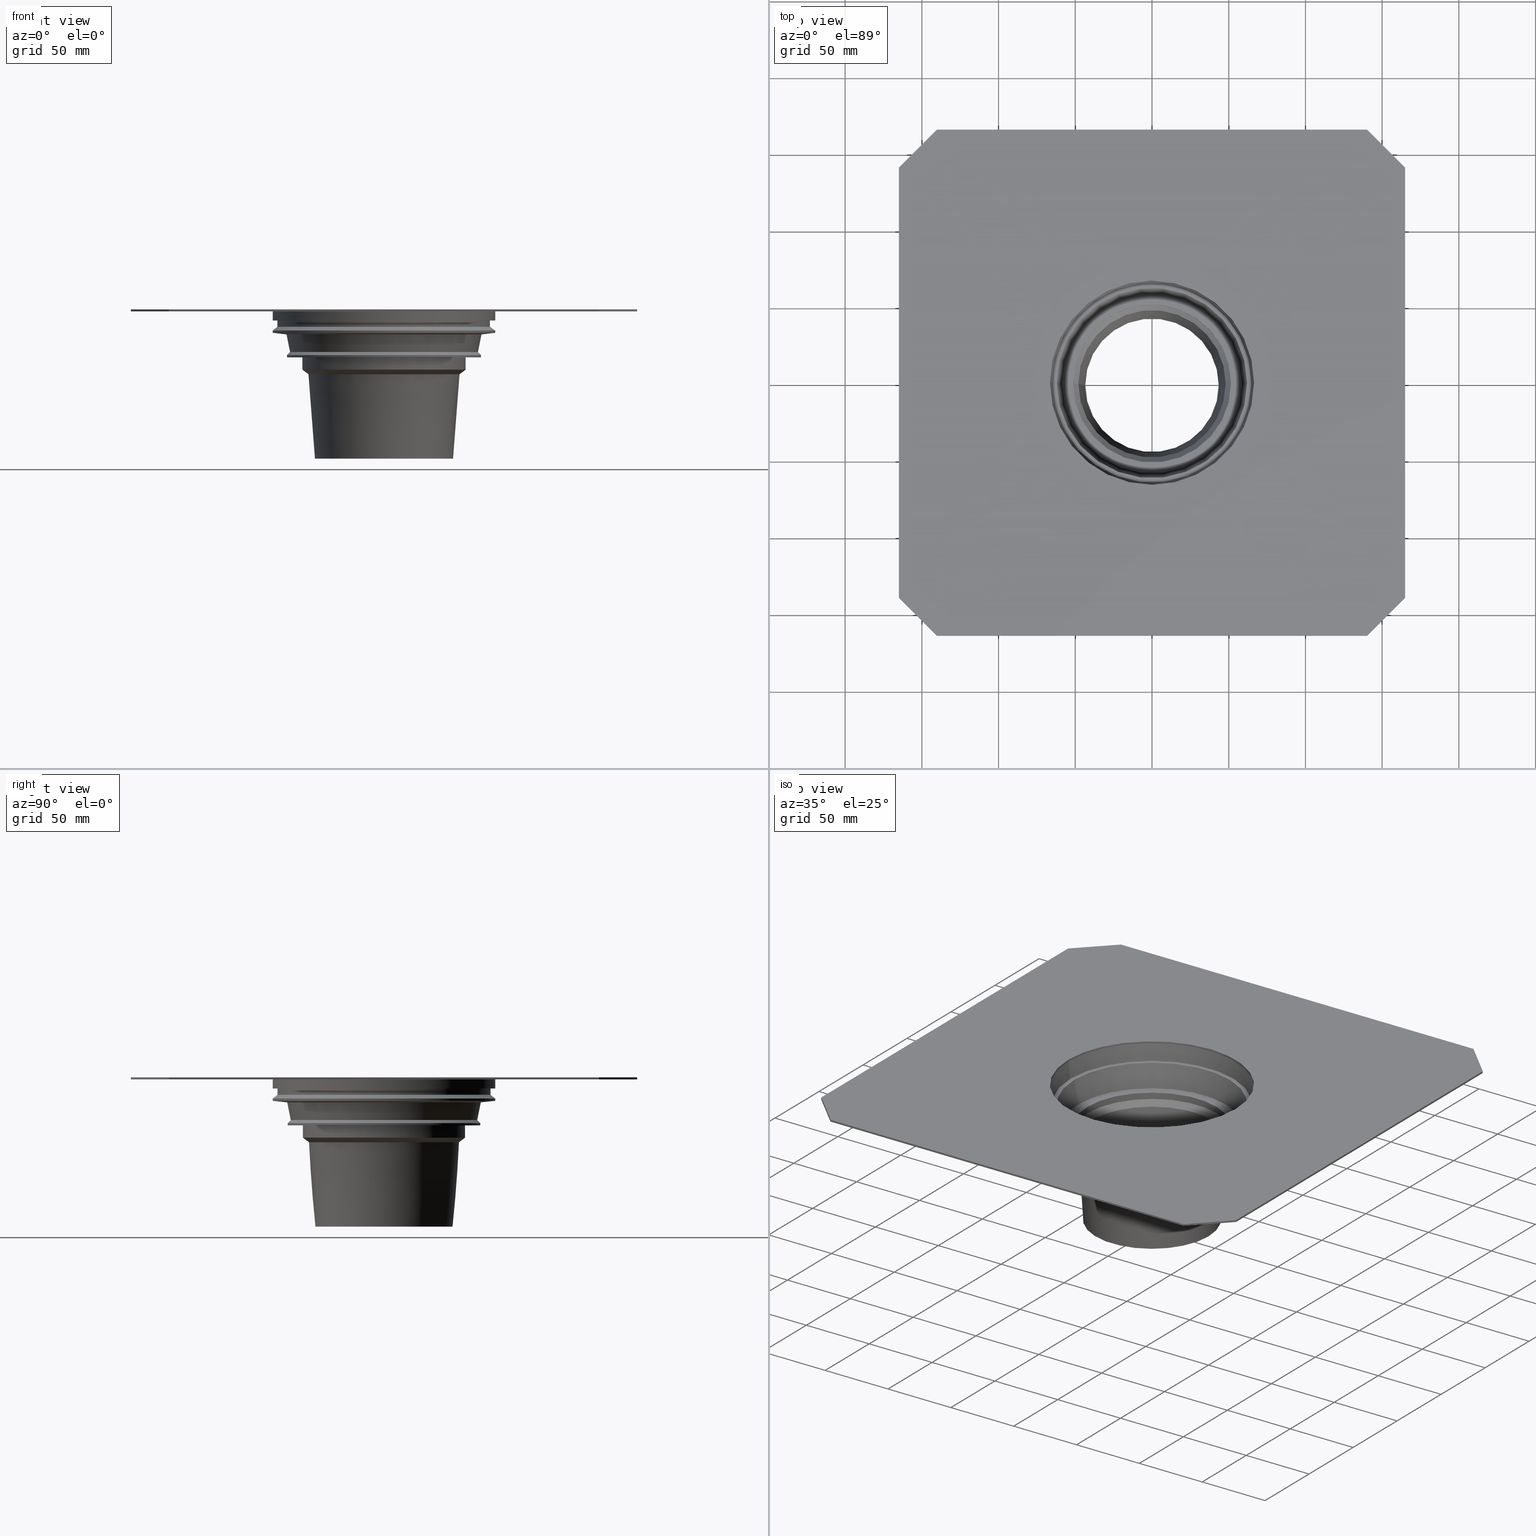
[diagram: canonical four-view strip — front | top / right | iso, engineering-drawing reading convention]
A machine part, canonical four-view strip (front | top / right | iso — engineering-drawing reading convention). The complete STEP part file that produces these views, byte-faithful:
ISO-10303-21;
HEADER;
/* Generated by software containing ST-Developer
 * from STEP Tools, Inc. (www.steptools.com) 
 */
/* OPTION: using custom renumber hook */

FILE_DESCRIPTION(
/* description */ ('STEP AP214'),
/* implementation_level */ '2;1');

FILE_NAME(
/* name */ '482017001(1)',
/* time_stamp */ '2022-12-23T08:21:32+01:00',
/* author */ ('License CC BY-ND 4.0'),
/* organization */ ('CADENAS'),
/* preprocessor_version */ 'ST-DEVELOPER v18.102',
/* originating_system */ 'PARTsolutions',
/* authorisation */ '  ');

FILE_SCHEMA (('AUTOMOTIVE_DESIGN {1 0 10303 214 3 1 1}'));
ENDSEC;

DATA;
#10=PROPERTY_DEFINITION_REPRESENTATION(#14,#12);
#11=PROPERTY_DEFINITION_REPRESENTATION(#15,#13);
#12=REPRESENTATION('',(#16),#771);
#13=REPRESENTATION('',(#17),#771);
#14=PROPERTY_DEFINITION('pmi validation property','',#776);
#15=PROPERTY_DEFINITION('pmi validation property','',#776);
#16=VALUE_REPRESENTATION_ITEM('number of annotations',COUNT_MEASURE(0.));
#17=VALUE_REPRESENTATION_ITEM('number of views',COUNT_MEASURE(0.));
#18=SHAPE_REPRESENTATION_RELATIONSHIP('','',#458,#19);
#19=ADVANCED_BREP_SHAPE_REPRESENTATION('',(#456),#771);
#20=CONICAL_SURFACE('',#471,63.556,1.45945195543957);
#21=CONICAL_SURFACE('',#476,72.5,0.876058050598193);
#22=CONICAL_SURFACE('',#484,66.5,0.132797157435015);
#23=CONICAL_SURFACE('',#488,61.897,0.201179487707473);
#24=CONICAL_SURFACE('',#494,51.5,0.718829999621625);
#25=CONICAL_SURFACE('',#496,48.,0.0766302366143812);
#26=CONICAL_SURFACE('',#500,45.,0.0766314619462777);
#27=CONICAL_SURFACE('',#502,49.223,0.92729521800161);
#28=CONICAL_SURFACE('',#510,63.223,0.788389181397253);
#29=CONICAL_SURFACE('',#512,61.211,0.201155254725828);
#30=CIRCLE('',#468,66.5);
#31=CIRCLE('',#469,66.5);
#32=CIRCLE('',#472,72.5);
#33=CIRCLE('',#473,63.556);
#34=CIRCLE('',#475,72.5);
#35=CIRCLE('',#477,69.5);
#36=CIRCLE('',#479,69.5);
#37=CIRCLE('',#481,72.5);
#38=CIRCLE('',#483,72.5);
#39=CIRCLE('',#485,64.897);
#40=CIRCLE('',#487,61.897);
#41=CIRCLE('',#489,58.5);
#42=CIRCLE('',#491,51.5);
#43=CIRCLE('',#493,51.5);
#44=CIRCLE('',#495,48.);
#45=CIRCLE('',#497,43.482);
#46=CIRCLE('',#499,45.);
#47=CIRCLE('',#501,49.223);
#48=CIRCLE('',#503,53.223);
#49=CIRCLE('',#505,53.223);
#50=CIRCLE('',#507,63.223);
#51=CIRCLE('',#509,63.223);
#52=CIRCLE('',#511,61.211);
#53=CYLINDRICAL_SURFACE('',#467,66.5);
#54=CYLINDRICAL_SURFACE('',#474,72.5);
#55=CYLINDRICAL_SURFACE('',#478,69.5);
#56=CYLINDRICAL_SURFACE('',#482,72.5);
#57=CYLINDRICAL_SURFACE('',#492,51.5);
#58=CYLINDRICAL_SURFACE('',#504,53.223);
#59=CYLINDRICAL_SURFACE('',#508,63.223);
#60=ORIENTED_EDGE('',*,*,#154,.F.);
#61=ORIENTED_EDGE('',*,*,#155,.T.);
#62=ORIENTED_EDGE('',*,*,#156,.T.);
#63=ORIENTED_EDGE('',*,*,#157,.F.);
#64=ORIENTED_EDGE('',*,*,#158,.F.);
#65=ORIENTED_EDGE('',*,*,#157,.T.);
#66=ORIENTED_EDGE('',*,*,#159,.T.);
#67=ORIENTED_EDGE('',*,*,#160,.F.);
#68=ORIENTED_EDGE('',*,*,#161,.F.);
#69=ORIENTED_EDGE('',*,*,#160,.T.);
#70=ORIENTED_EDGE('',*,*,#162,.T.);
#71=ORIENTED_EDGE('',*,*,#163,.F.);
#72=ORIENTED_EDGE('',*,*,#164,.F.);
#73=ORIENTED_EDGE('',*,*,#163,.T.);
#74=ORIENTED_EDGE('',*,*,#165,.T.);
#75=ORIENTED_EDGE('',*,*,#166,.F.);
#76=ORIENTED_EDGE('',*,*,#167,.F.);
#77=ORIENTED_EDGE('',*,*,#166,.T.);
#78=ORIENTED_EDGE('',*,*,#168,.T.);
#79=ORIENTED_EDGE('',*,*,#169,.F.);
#80=ORIENTED_EDGE('',*,*,#170,.F.);
#81=ORIENTED_EDGE('',*,*,#169,.T.);
#82=ORIENTED_EDGE('',*,*,#171,.T.);
#83=ORIENTED_EDGE('',*,*,#172,.F.);
#84=ORIENTED_EDGE('',*,*,#173,.F.);
#85=ORIENTED_EDGE('',*,*,#172,.T.);
#86=ORIENTED_EDGE('',*,*,#174,.T.);
#87=ORIENTED_EDGE('',*,*,#175,.F.);
#88=ORIENTED_EDGE('',*,*,#176,.T.);
#89=ORIENTED_EDGE('',*,*,#177,.T.);
#90=ORIENTED_EDGE('',*,*,#178,.F.);
#91=ORIENTED_EDGE('',*,*,#175,.T.);
#92=ORIENTED_EDGE('',*,*,#179,.T.);
#93=ORIENTED_EDGE('',*,*,#155,.F.);
#94=ORIENTED_EDGE('',*,*,#180,.T.);
#95=ORIENTED_EDGE('',*,*,#181,.F.);
#96=ORIENTED_EDGE('',*,*,#182,.T.);
#97=ORIENTED_EDGE('',*,*,#180,.F.);
#98=ORIENTED_EDGE('',*,*,#183,.T.);
#99=ORIENTED_EDGE('',*,*,#182,.F.);
#100=ORIENTED_EDGE('',*,*,#184,.T.);
#101=ORIENTED_EDGE('',*,*,#183,.F.);
#102=ORIENTED_EDGE('',*,*,#185,.T.);
#103=ORIENTED_EDGE('',*,*,#184,.F.);
#104=ORIENTED_EDGE('',*,*,#186,.T.);
#105=ORIENTED_EDGE('',*,*,#185,.F.);
#106=ORIENTED_EDGE('',*,*,#187,.T.);
#107=ORIENTED_EDGE('',*,*,#176,.F.);
#108=ORIENTED_EDGE('',*,*,#188,.T.);
#109=ORIENTED_EDGE('',*,*,#187,.F.);
#110=ORIENTED_EDGE('',*,*,#189,.T.);
#111=ORIENTED_EDGE('',*,*,#188,.F.);
#112=ORIENTED_EDGE('',*,*,#190,.T.);
#113=ORIENTED_EDGE('',*,*,#189,.F.);
#114=ORIENTED_EDGE('',*,*,#191,.T.);
#115=ORIENTED_EDGE('',*,*,#190,.F.);
#116=ORIENTED_EDGE('',*,*,#192,.T.);
#117=ORIENTED_EDGE('',*,*,#191,.F.);
#118=ORIENTED_EDGE('',*,*,#193,.T.);
#119=ORIENTED_EDGE('',*,*,#192,.F.);
#120=ORIENTED_EDGE('',*,*,#194,.T.);
#121=ORIENTED_EDGE('',*,*,#193,.F.);
#122=ORIENTED_EDGE('',*,*,#195,.T.);
#123=ORIENTED_EDGE('',*,*,#194,.F.);
#124=ORIENTED_EDGE('',*,*,#196,.T.);
#125=ORIENTED_EDGE('',*,*,#195,.F.);
#126=ORIENTED_EDGE('',*,*,#197,.T.);
#127=ORIENTED_EDGE('',*,*,#196,.F.);
#128=ORIENTED_EDGE('',*,*,#198,.T.);
#129=ORIENTED_EDGE('',*,*,#197,.F.);
#130=ORIENTED_EDGE('',*,*,#199,.T.);
#131=ORIENTED_EDGE('',*,*,#198,.F.);
#132=ORIENTED_EDGE('',*,*,#200,.T.);
#133=ORIENTED_EDGE('',*,*,#199,.F.);
#134=ORIENTED_EDGE('',*,*,#181,.T.);
#135=ORIENTED_EDGE('',*,*,#200,.F.);
#136=ORIENTED_EDGE('',*,*,#186,.F.);
#137=ORIENTED_EDGE('',*,*,#156,.F.);
#138=ORIENTED_EDGE('',*,*,#179,.F.);
#139=ORIENTED_EDGE('',*,*,#174,.F.);
#140=ORIENTED_EDGE('',*,*,#171,.F.);
#141=ORIENTED_EDGE('',*,*,#168,.F.);
#142=ORIENTED_EDGE('',*,*,#165,.F.);
#143=ORIENTED_EDGE('',*,*,#162,.F.);
#144=ORIENTED_EDGE('',*,*,#159,.F.);
#145=ORIENTED_EDGE('',*,*,#177,.F.);
#146=ORIENTED_EDGE('',*,*,#154,.T.);
#147=ORIENTED_EDGE('',*,*,#158,.T.);
#148=ORIENTED_EDGE('',*,*,#161,.T.);
#149=ORIENTED_EDGE('',*,*,#164,.T.);
#150=ORIENTED_EDGE('',*,*,#167,.T.);
#151=ORIENTED_EDGE('',*,*,#170,.T.);
#152=ORIENTED_EDGE('',*,*,#173,.T.);
#153=ORIENTED_EDGE('',*,*,#178,.T.);
#154=EDGE_CURVE('',#201,#202,#240,.T.);
#155=EDGE_CURVE('',#201,#203,#241,.T.);
#156=EDGE_CURVE('',#203,#204,#242,.T.);
#157=EDGE_CURVE('',#202,#204,#243,.T.);
#158=EDGE_CURVE('',#202,#205,#244,.T.);
#159=EDGE_CURVE('',#204,#206,#245,.T.);
#160=EDGE_CURVE('',#205,#206,#246,.T.);
#161=EDGE_CURVE('',#205,#207,#247,.T.);
#162=EDGE_CURVE('',#206,#208,#248,.T.);
#163=EDGE_CURVE('',#207,#208,#249,.T.);
#164=EDGE_CURVE('',#207,#209,#250,.T.);
#165=EDGE_CURVE('',#208,#210,#251,.T.);
#166=EDGE_CURVE('',#209,#210,#252,.T.);
#167=EDGE_CURVE('',#209,#211,#253,.T.);
#168=EDGE_CURVE('',#210,#212,#254,.T.);
#169=EDGE_CURVE('',#211,#212,#255,.T.);
#170=EDGE_CURVE('',#211,#213,#256,.T.);
#171=EDGE_CURVE('',#212,#214,#257,.T.);
#172=EDGE_CURVE('',#213,#214,#258,.T.);
#173=EDGE_CURVE('',#213,#215,#259,.T.);
#174=EDGE_CURVE('',#214,#216,#260,.T.);
#175=EDGE_CURVE('',#215,#216,#261,.T.);
#176=EDGE_CURVE('',#217,#217,#30,.T.);
#177=EDGE_CURVE('',#218,#218,#31,.T.);
#178=EDGE_CURVE('',#215,#201,#262,.T.);
#179=EDGE_CURVE('',#216,#203,#263,.T.);
#180=EDGE_CURVE('',#219,#219,#32,.T.);
#181=EDGE_CURVE('',#220,#220,#33,.T.);
#182=EDGE_CURVE('',#221,#221,#34,.T.);
#183=EDGE_CURVE('',#222,#222,#35,.T.);
#184=EDGE_CURVE('',#223,#223,#36,.T.);
#185=EDGE_CURVE('',#224,#224,#37,.T.);
#186=EDGE_CURVE('',#225,#225,#38,.F.);
#187=EDGE_CURVE('',#226,#226,#39,.T.);
#188=EDGE_CURVE('',#227,#227,#40,.T.);
#189=EDGE_CURVE('',#228,#228,#41,.T.);
#190=EDGE_CURVE('',#229,#229,#42,.T.);
#191=EDGE_CURVE('',#230,#230,#43,.T.);
#192=EDGE_CURVE('',#231,#231,#44,.T.);
#193=EDGE_CURVE('',#232,#232,#45,.T.);
#194=EDGE_CURVE('',#233,#233,#46,.T.);
#195=EDGE_CURVE('',#234,#234,#47,.T.);
#196=EDGE_CURVE('',#235,#235,#48,.T.);
#197=EDGE_CURVE('',#236,#236,#49,.T.);
#198=EDGE_CURVE('',#237,#237,#50,.T.);
#199=EDGE_CURVE('',#238,#238,#51,.T.);
#200=EDGE_CURVE('',#239,#239,#52,.T.);
#201=VERTEX_POINT('',#654);
#202=VERTEX_POINT('',#655);
#203=VERTEX_POINT('',#657);
#204=VERTEX_POINT('',#659);
#205=VERTEX_POINT('',#663);
#206=VERTEX_POINT('',#665);
#207=VERTEX_POINT('',#669);
#208=VERTEX_POINT('',#671);
#209=VERTEX_POINT('',#675);
#210=VERTEX_POINT('',#677);
#211=VERTEX_POINT('',#681);
#212=VERTEX_POINT('',#683);
#213=VERTEX_POINT('',#687);
#214=VERTEX_POINT('',#689);
#215=VERTEX_POINT('',#693);
#216=VERTEX_POINT('',#695);
#217=VERTEX_POINT('',#699);
#218=VERTEX_POINT('',#701);
#219=VERTEX_POINT('',#707);
#220=VERTEX_POINT('',#709);
#221=VERTEX_POINT('',#712);
#222=VERTEX_POINT('',#715);
#223=VERTEX_POINT('',#718);
#224=VERTEX_POINT('',#721);
#225=VERTEX_POINT('',#724);
#226=VERTEX_POINT('',#727);
#227=VERTEX_POINT('',#730);
#228=VERTEX_POINT('',#733);
#229=VERTEX_POINT('',#736);
#230=VERTEX_POINT('',#739);
#231=VERTEX_POINT('',#742);
#232=VERTEX_POINT('',#745);
#233=VERTEX_POINT('',#748);
#234=VERTEX_POINT('',#751);
#235=VERTEX_POINT('',#754);
#236=VERTEX_POINT('',#757);
#237=VERTEX_POINT('',#760);
#238=VERTEX_POINT('',#763);
#239=VERTEX_POINT('',#766);
#240=LINE('',#653,#264);
#241=LINE('',#656,#265);
#242=LINE('',#658,#266);
#243=LINE('',#660,#267);
#244=LINE('',#662,#268);
#245=LINE('',#664,#269);
#246=LINE('',#666,#270);
#247=LINE('',#668,#271);
#248=LINE('',#670,#272);
#249=LINE('',#672,#273);
#250=LINE('',#674,#274);
#251=LINE('',#676,#275);
#252=LINE('',#678,#276);
#253=LINE('',#680,#277);
#254=LINE('',#682,#278);
#255=LINE('',#684,#279);
#256=LINE('',#686,#280);
#257=LINE('',#688,#281);
#258=LINE('',#690,#282);
#259=LINE('',#692,#283);
#260=LINE('',#694,#284);
#261=LINE('',#696,#285);
#262=LINE('',#703,#286);
#263=LINE('',#704,#287);
#264=VECTOR('',#519,1000.);
#265=VECTOR('',#520,1000.);
#266=VECTOR('',#521,1000.);
#267=VECTOR('',#522,1000.);
#268=VECTOR('',#525,1000.);
#269=VECTOR('',#526,1000.);
#270=VECTOR('',#527,1000.);
#271=VECTOR('',#530,1000.);
#272=VECTOR('',#531,1000.);
#273=VECTOR('',#532,1000.);
#274=VECTOR('',#535,1000.);
#275=VECTOR('',#536,1000.);
#276=VECTOR('',#537,1000.);
#277=VECTOR('',#540,1000.);
#278=VECTOR('',#541,1000.);
#279=VECTOR('',#542,1000.);
#280=VECTOR('',#545,1000.);
#281=VECTOR('',#546,1000.);
#282=VECTOR('',#547,1000.);
#283=VECTOR('',#550,1000.);
#284=VECTOR('',#551,1000.);
#285=VECTOR('',#552,1000.);
#286=VECTOR('',#561,1000.);
#287=VECTOR('',#562,1000.);
#288=EDGE_LOOP('',(#60,#61,#62,#63));
#289=EDGE_LOOP('',(#64,#65,#66,#67));
#290=EDGE_LOOP('',(#68,#69,#70,#71));
#291=EDGE_LOOP('',(#72,#73,#74,#75));
#292=EDGE_LOOP('',(#76,#77,#78,#79));
#293=EDGE_LOOP('',(#80,#81,#82,#83));
#294=EDGE_LOOP('',(#84,#85,#86,#87));
#295=EDGE_LOOP('',(#88));
#296=EDGE_LOOP('',(#89));
#297=EDGE_LOOP('',(#90,#91,#92,#93));
#298=EDGE_LOOP('',(#94));
#299=EDGE_LOOP('',(#95));
#300=EDGE_LOOP('',(#96));
#301=EDGE_LOOP('',(#97));
#302=EDGE_LOOP('',(#98));
#303=EDGE_LOOP('',(#99));
#304=EDGE_LOOP('',(#100));
#305=EDGE_LOOP('',(#101));
#306=EDGE_LOOP('',(#102));
#307=EDGE_LOOP('',(#103));
#308=EDGE_LOOP('',(#104));
#309=EDGE_LOOP('',(#105));
#310=EDGE_LOOP('',(#106));
#311=EDGE_LOOP('',(#107));
#312=EDGE_LOOP('',(#108));
#313=EDGE_LOOP('',(#109));
#314=EDGE_LOOP('',(#110));
#315=EDGE_LOOP('',(#111));
#316=EDGE_LOOP('',(#112));
#317=EDGE_LOOP('',(#113));
#318=EDGE_LOOP('',(#114));
#319=EDGE_LOOP('',(#115));
#320=EDGE_LOOP('',(#116));
#321=EDGE_LOOP('',(#117));
#322=EDGE_LOOP('',(#118));
#323=EDGE_LOOP('',(#119));
#324=EDGE_LOOP('',(#120));
#325=EDGE_LOOP('',(#121));
#326=EDGE_LOOP('',(#122));
#327=EDGE_LOOP('',(#123));
#328=EDGE_LOOP('',(#124));
#329=EDGE_LOOP('',(#125));
#330=EDGE_LOOP('',(#126));
#331=EDGE_LOOP('',(#127));
#332=EDGE_LOOP('',(#128));
#333=EDGE_LOOP('',(#129));
#334=EDGE_LOOP('',(#130));
#335=EDGE_LOOP('',(#131));
#336=EDGE_LOOP('',(#132));
#337=EDGE_LOOP('',(#133));
#338=EDGE_LOOP('',(#134));
#339=EDGE_LOOP('',(#135));
#340=EDGE_LOOP('',(#136));
#341=EDGE_LOOP('',(#137,#138,#139,#140,#141,#142,#143,#144));
#342=EDGE_LOOP('',(#145));
#343=EDGE_LOOP('',(#146,#147,#148,#149,#150,#151,#152,#153));
#344=FACE_BOUND('',#288,.T.);
#345=FACE_BOUND('',#289,.T.);
#346=FACE_BOUND('',#290,.T.);
#347=FACE_BOUND('',#291,.T.);
#348=FACE_BOUND('',#292,.T.);
#349=FACE_BOUND('',#293,.T.);
#350=FACE_BOUND('',#294,.T.);
#351=FACE_BOUND('',#295,.T.);
#352=FACE_BOUND('',#296,.T.);
#353=FACE_BOUND('',#297,.T.);
#354=FACE_BOUND('',#298,.T.);
#355=FACE_BOUND('',#299,.T.);
#356=FACE_BOUND('',#300,.T.);
#357=FACE_BOUND('',#301,.T.);
#358=FACE_BOUND('',#302,.T.);
#359=FACE_BOUND('',#303,.T.);
#360=FACE_BOUND('',#304,.T.);
#361=FACE_BOUND('',#305,.T.);
#362=FACE_BOUND('',#306,.T.);
#363=FACE_BOUND('',#307,.T.);
#364=FACE_BOUND('',#308,.T.);
#365=FACE_BOUND('',#309,.T.);
#366=FACE_BOUND('',#310,.T.);
#367=FACE_BOUND('',#311,.T.);
#368=FACE_BOUND('',#312,.T.);
#369=FACE_BOUND('',#313,.T.);
#370=FACE_BOUND('',#314,.T.);
#371=FACE_BOUND('',#315,.T.);
#372=FACE_BOUND('',#316,.T.);
#373=FACE_BOUND('',#317,.T.);
#374=FACE_BOUND('',#318,.T.);
#375=FACE_BOUND('',#319,.T.);
#376=FACE_BOUND('',#320,.T.);
#377=FACE_BOUND('',#321,.T.);
#378=FACE_BOUND('',#322,.T.);
#379=FACE_BOUND('',#323,.T.);
#380=FACE_BOUND('',#324,.T.);
#381=FACE_BOUND('',#325,.T.);
#382=FACE_BOUND('',#326,.T.);
#383=FACE_BOUND('',#327,.T.);
#384=FACE_BOUND('',#328,.T.);
#385=FACE_BOUND('',#329,.T.);
#386=FACE_BOUND('',#330,.T.);
#387=FACE_BOUND('',#331,.T.);
#388=FACE_BOUND('',#332,.T.);
#389=FACE_BOUND('',#333,.T.);
#390=FACE_BOUND('',#334,.T.);
#391=FACE_BOUND('',#335,.T.);
#392=FACE_BOUND('',#336,.T.);
#393=FACE_BOUND('',#337,.T.);
#394=FACE_BOUND('',#338,.T.);
#395=FACE_BOUND('',#339,.T.);
#396=FACE_BOUND('',#340,.T.);
#397=FACE_BOUND('',#341,.T.);
#398=FACE_BOUND('',#342,.T.);
#399=FACE_BOUND('',#343,.T.);
#400=PLANE('',#460);
#401=PLANE('',#461);
#402=PLANE('',#462);
#403=PLANE('',#463);
#404=PLANE('',#464);
#405=PLANE('',#465);
#406=PLANE('',#466);
#407=PLANE('',#470);
#408=PLANE('',#480);
#409=PLANE('',#486);
#410=PLANE('',#490);
#411=PLANE('',#498);
#412=PLANE('',#506);
#413=PLANE('',#513);
#414=PLANE('',#514);
#415=ADVANCED_FACE('',(#344),#400,.F.);
#416=ADVANCED_FACE('',(#345),#401,.F.);
#417=ADVANCED_FACE('',(#346),#402,.F.);
#418=ADVANCED_FACE('',(#347),#403,.F.);
#419=ADVANCED_FACE('',(#348),#404,.F.);
#420=ADVANCED_FACE('',(#349),#405,.F.);
#421=ADVANCED_FACE('',(#350),#406,.F.);
#422=ADVANCED_FACE('',(#351,#352),#53,.F.);
#423=ADVANCED_FACE('',(#353),#407,.F.);
#424=ADVANCED_FACE('',(#354,#355),#20,.T.);
#425=ADVANCED_FACE('',(#356,#357),#54,.T.);
#426=ADVANCED_FACE('',(#358,#359),#21,.T.);
#427=ADVANCED_FACE('',(#360,#361),#55,.T.);
#428=ADVANCED_FACE('',(#362,#363),#408,.T.);
#429=ADVANCED_FACE('',(#364,#365),#56,.T.);
#430=ADVANCED_FACE('',(#366,#367),#22,.F.);
#431=ADVANCED_FACE('',(#368,#369),#409,.T.);
#432=ADVANCED_FACE('',(#370,#371),#23,.F.);
#433=ADVANCED_FACE('',(#372,#373),#410,.T.);
#434=ADVANCED_FACE('',(#374,#375),#57,.F.);
#435=ADVANCED_FACE('',(#376,#377),#24,.F.);
#436=ADVANCED_FACE('',(#378,#379),#25,.F.);
#437=ADVANCED_FACE('',(#380,#381),#411,.T.);
#438=ADVANCED_FACE('',(#382,#383),#26,.T.);
#439=ADVANCED_FACE('',(#384,#385),#27,.T.);
#440=ADVANCED_FACE('',(#386,#387),#58,.T.);
#441=ADVANCED_FACE('',(#388,#389),#412,.T.);
#442=ADVANCED_FACE('',(#390,#391),#59,.T.);
#443=ADVANCED_FACE('',(#392,#393),#28,.T.);
#444=ADVANCED_FACE('',(#394,#395),#29,.T.);
#445=ADVANCED_FACE('',(#396,#397),#413,.F.);
#446=ADVANCED_FACE('',(#398,#399),#414,.T.);
#447=CLOSED_SHELL('',(#415,#416,#417,#418,#419,#420,#421,#422,#423,#424,
#425,#426,#427,#428,#429,#430,#431,#432,#433,#434,#435,#436,#437,#438,#439,
#440,#441,#442,#443,#444,#445,#446));
#448=STYLED_ITEM('',(#449),#456);
#449=PRESENTATION_STYLE_ASSIGNMENT((#450));
#450=SURFACE_STYLE_USAGE(.BOTH.,#451);
#451=SURFACE_SIDE_STYLE('',(#452));
#452=SURFACE_STYLE_FILL_AREA(#453);
#453=FILL_AREA_STYLE('',(#454));
#454=FILL_AREA_STYLE_COLOUR('',#455);
#455=COLOUR_RGB('',0.689999997615814,0.689999997615814,0.689999997615814);
#456=MANIFOLD_SOLID_BREP('482017001(1)',#447);
#457=SHAPE_DEFINITION_REPRESENTATION(#776,#458);
#458=SHAPE_REPRESENTATION('482017001(1)',(#459),#771);
#459=AXIS2_PLACEMENT_3D('',#651,#515,#516);
#460=AXIS2_PLACEMENT_3D('',#652,#517,#518);
#461=AXIS2_PLACEMENT_3D('',#661,#523,#524);
#462=AXIS2_PLACEMENT_3D('',#667,#528,#529);
#463=AXIS2_PLACEMENT_3D('',#673,#533,#534);
#464=AXIS2_PLACEMENT_3D('',#679,#538,#539);
#465=AXIS2_PLACEMENT_3D('',#685,#543,#544);
#466=AXIS2_PLACEMENT_3D('',#691,#548,#549);
#467=AXIS2_PLACEMENT_3D('',#697,#553,#554);
#468=AXIS2_PLACEMENT_3D('',#698,#555,#556);
#469=AXIS2_PLACEMENT_3D('',#700,#557,#558);
#470=AXIS2_PLACEMENT_3D('',#702,#559,#560);
#471=AXIS2_PLACEMENT_3D('',#705,#563,#564);
#472=AXIS2_PLACEMENT_3D('',#706,#565,#566);
#473=AXIS2_PLACEMENT_3D('',#708,#567,#568);
#474=AXIS2_PLACEMENT_3D('',#710,#569,#570);
#475=AXIS2_PLACEMENT_3D('',#711,#571,#572);
#476=AXIS2_PLACEMENT_3D('',#713,#573,#574);
#477=AXIS2_PLACEMENT_3D('',#714,#575,#576);
#478=AXIS2_PLACEMENT_3D('',#716,#577,#578);
#479=AXIS2_PLACEMENT_3D('',#717,#579,#580);
#480=AXIS2_PLACEMENT_3D('',#719,#581,#582);
#481=AXIS2_PLACEMENT_3D('',#720,#583,#584);
#482=AXIS2_PLACEMENT_3D('',#722,#585,#586);
#483=AXIS2_PLACEMENT_3D('',#723,#587,#588);
#484=AXIS2_PLACEMENT_3D('',#725,#589,#590);
#485=AXIS2_PLACEMENT_3D('',#726,#591,#592);
#486=AXIS2_PLACEMENT_3D('',#728,#593,#594);
#487=AXIS2_PLACEMENT_3D('',#729,#595,#596);
#488=AXIS2_PLACEMENT_3D('',#731,#597,#598);
#489=AXIS2_PLACEMENT_3D('',#732,#599,#600);
#490=AXIS2_PLACEMENT_3D('',#734,#601,#602);
#491=AXIS2_PLACEMENT_3D('',#735,#603,#604);
#492=AXIS2_PLACEMENT_3D('',#737,#605,#606);
#493=AXIS2_PLACEMENT_3D('',#738,#607,#608);
#494=AXIS2_PLACEMENT_3D('',#740,#609,#610);
#495=AXIS2_PLACEMENT_3D('',#741,#611,#612);
#496=AXIS2_PLACEMENT_3D('',#743,#613,#614);
#497=AXIS2_PLACEMENT_3D('',#744,#615,#616);
#498=AXIS2_PLACEMENT_3D('',#746,#617,#618);
#499=AXIS2_PLACEMENT_3D('',#747,#619,#620);
#500=AXIS2_PLACEMENT_3D('',#749,#621,#622);
#501=AXIS2_PLACEMENT_3D('',#750,#623,#624);
#502=AXIS2_PLACEMENT_3D('',#752,#625,#626);
#503=AXIS2_PLACEMENT_3D('',#753,#627,#628);
#504=AXIS2_PLACEMENT_3D('',#755,#629,#630);
#505=AXIS2_PLACEMENT_3D('',#756,#631,#632);
#506=AXIS2_PLACEMENT_3D('',#758,#633,#634);
#507=AXIS2_PLACEMENT_3D('',#759,#635,#636);
#508=AXIS2_PLACEMENT_3D('',#761,#637,#638);
#509=AXIS2_PLACEMENT_3D('',#762,#639,#640);
#510=AXIS2_PLACEMENT_3D('',#764,#641,#642);
#511=AXIS2_PLACEMENT_3D('',#765,#643,#644);
#512=AXIS2_PLACEMENT_3D('',#767,#645,#646);
#513=AXIS2_PLACEMENT_3D('',#768,#647,#648);
#514=AXIS2_PLACEMENT_3D('',#769,#649,#650);
#515=DIRECTION('',(0.,0.,1.));
#516=DIRECTION('',(1.,0.,0.));
#517=DIRECTION('',(1.,0.,0.));
#518=DIRECTION('',(0.,0.,-1.));
#519=DIRECTION('',(0.,-1.,0.));
#520=DIRECTION('',(0.,0.,-1.));
#521=DIRECTION('',(0.,-1.,0.));
#522=DIRECTION('',(0.,0.,-1.));
#523=DIRECTION('',(0.707106781186548,0.707106781186548,0.));
#524=DIRECTION('',(-0.707106781186548,0.707106781186548,0.));
#525=DIRECTION('',(0.707106781186548,-0.707106781186548,1.35290595589709E-18));
#526=DIRECTION('',(0.707106781186547,-0.707106781186547,0.));
#527=DIRECTION('',(0.,0.,-1.));
#528=DIRECTION('',(0.,1.,0.));
#529=DIRECTION('',(0.,0.,1.));
#530=DIRECTION('',(1.,0.,1.91329795144501E-18));
#531=DIRECTION('',(1.,0.,0.));
#532=DIRECTION('',(0.,0.,-1.));
#533=DIRECTION('',(-0.707106781186548,0.707106781186548,0.));
#534=DIRECTION('',(-0.707106781186548,-0.707106781186548,0.));
#535=DIRECTION('',(0.707106781186548,0.707106781186548,1.35290595589709E-18));
#536=DIRECTION('',(0.707106781186547,0.707106781186547,0.));
#537=DIRECTION('',(0.,0.,-1.));
#538=DIRECTION('',(-1.,0.,0.));
#539=DIRECTION('',(0.,0.,1.));
#540=DIRECTION('',(0.,1.,0.));
#541=DIRECTION('',(0.,1.,0.));
#542=DIRECTION('',(0.,0.,-1.));
#543=DIRECTION('',(-0.707106781186548,-0.707106781186548,0.));
#544=DIRECTION('',(0.707106781186548,-0.707106781186548,0.));
#545=DIRECTION('',(-0.707106781186548,0.707106781186548,-1.35290595589709E-18));
#546=DIRECTION('',(-0.707106781186547,0.707106781186547,0.));
#547=DIRECTION('',(0.,0.,-1.));
#548=DIRECTION('',(0.,-1.,0.));
#549=DIRECTION('',(0.,0.,-1.));
#550=DIRECTION('',(-1.,0.,-1.91329795144501E-18));
#551=DIRECTION('',(-1.,0.,0.));
#552=DIRECTION('',(0.,0.,-1.));
#553=DIRECTION('',(0.,0.,-1.));
#554=DIRECTION('',(-1.,0.,0.));
#555=DIRECTION('',(0.,0.,-1.));
#556=DIRECTION('',(-1.,0.,0.));
#557=DIRECTION('',(-1.91329795144501E-18,0.,1.));
#558=DIRECTION('',(1.,0.,1.91329795144501E-18));
#559=DIRECTION('',(0.707106781186548,-0.707106781186548,0.));
#560=DIRECTION('',(0.707106781186548,0.707106781186548,0.));
#561=DIRECTION('',(-0.707106781186548,-0.707106781186548,-1.35290595589709E-18));
#562=DIRECTION('',(-0.707106781186547,-0.707106781186547,0.));
#563=DIRECTION('',(0.,0.,1.));
#564=DIRECTION('',(1.,0.,0.));
#565=DIRECTION('',(0.,0.,-1.));
#566=DIRECTION('',(-1.,0.,0.));
#567=DIRECTION('',(0.,0.,-1.));
#568=DIRECTION('',(-1.,0.,0.));
#569=DIRECTION('',(0.,0.,-1.));
#570=DIRECTION('',(-1.,0.,0.));
#571=DIRECTION('',(0.,0.,-1.));
#572=DIRECTION('',(-1.,0.,0.));
#573=DIRECTION('',(0.,0.,-1.));
#574=DIRECTION('',(-1.,0.,0.));
#575=DIRECTION('',(0.,0.,-1.));
#576=DIRECTION('',(-1.,0.,0.));
#577=DIRECTION('',(0.,0.,-1.));
#578=DIRECTION('',(-1.,0.,0.));
#579=DIRECTION('',(0.,0.,-1.));
#580=DIRECTION('',(-1.,0.,0.));
#581=DIRECTION('',(0.,0.,-1.));
#582=DIRECTION('',(-1.,0.,0.));
#583=DIRECTION('',(0.,0.,-1.));
#584=DIRECTION('',(-1.,0.,0.));
#585=DIRECTION('',(0.,0.,-1.));
#586=DIRECTION('',(-1.,0.,0.));
#587=DIRECTION('',(0.,0.,1.));
#588=DIRECTION('',(1.,0.,0.));
#589=DIRECTION('',(0.,0.,1.));
#590=DIRECTION('',(1.,0.,0.));
#591=DIRECTION('',(0.,0.,-1.));
#592=DIRECTION('',(-1.,0.,0.));
#593=DIRECTION('',(0.,0.,1.));
#594=DIRECTION('',(1.,0.,0.));
#595=DIRECTION('',(0.,0.,-1.));
#596=DIRECTION('',(-1.,0.,0.));
#597=DIRECTION('',(0.,0.,1.));
#598=DIRECTION('',(1.,0.,0.));
#599=DIRECTION('',(0.,0.,-1.));
#600=DIRECTION('',(-1.,0.,0.));
#601=DIRECTION('',(0.,0.,1.));
#602=DIRECTION('',(1.,0.,0.));
#603=DIRECTION('',(0.,0.,-1.));
#604=DIRECTION('',(-1.,0.,0.));
#605=DIRECTION('',(0.,0.,-1.));
#606=DIRECTION('',(-1.,0.,0.));
#607=DIRECTION('',(0.,0.,-1.));
#608=DIRECTION('',(-1.,0.,0.));
#609=DIRECTION('',(0.,0.,1.));
#610=DIRECTION('',(1.,0.,0.));
#611=DIRECTION('',(0.,0.,-1.));
#612=DIRECTION('',(-1.,0.,0.));
#613=DIRECTION('',(0.,0.,1.));
#614=DIRECTION('',(1.,0.,0.));
#615=DIRECTION('',(0.,0.,-1.));
#616=DIRECTION('',(-1.,0.,0.));
#617=DIRECTION('',(0.,0.,-1.));
#618=DIRECTION('',(-1.,0.,0.));
#619=DIRECTION('',(0.,0.,-1.));
#620=DIRECTION('',(-1.,0.,0.));
#621=DIRECTION('',(0.,0.,1.));
#622=DIRECTION('',(1.,0.,0.));
#623=DIRECTION('',(0.,0.,-1.));
#624=DIRECTION('',(-1.,0.,0.));
#625=DIRECTION('',(0.,0.,1.));
#626=DIRECTION('',(1.,0.,0.));
#627=DIRECTION('',(0.,0.,-1.));
#628=DIRECTION('',(-1.,0.,0.));
#629=DIRECTION('',(0.,0.,-1.));
#630=DIRECTION('',(-1.,0.,0.));
#631=DIRECTION('',(0.,0.,-1.));
#632=DIRECTION('',(-1.,0.,0.));
#633=DIRECTION('',(0.,0.,-1.));
#634=DIRECTION('',(-1.,0.,0.));
#635=DIRECTION('',(0.,0.,-1.));
#636=DIRECTION('',(-1.,0.,0.));
#637=DIRECTION('',(0.,0.,-1.));
#638=DIRECTION('',(-1.,0.,0.));
#639=DIRECTION('',(0.,0.,-1.));
#640=DIRECTION('',(-1.,0.,0.));
#641=DIRECTION('',(0.,0.,-1.));
#642=DIRECTION('',(-1.,0.,0.));
#643=DIRECTION('',(0.,0.,-1.));
#644=DIRECTION('',(-1.,0.,0.));
#645=DIRECTION('',(0.,0.,1.));
#646=DIRECTION('',(1.,0.,0.));
#647=DIRECTION('',(0.,0.,1.));
#648=DIRECTION('',(1.,0.,0.));
#649=DIRECTION('',(-1.91329795144501E-18,0.,1.));
#650=DIRECTION('',(1.,0.,1.91329795144501E-18));
#651=CARTESIAN_POINT('',(0.,0.,0.));
#652=CARTESIAN_POINT('',(-165.,140.251262658471,5.));
#653=CARTESIAN_POINT('',(-165.,140.251262658471,1.3));
#654=CARTESIAN_POINT('',(-165.,140.251262658471,1.3));
#655=CARTESIAN_POINT('',(-165.,-140.251262658471,1.3));
#656=CARTESIAN_POINT('',(-165.,140.251262658471,5.));
#657=CARTESIAN_POINT('',(-165.,140.251262658471,0.));
#658=CARTESIAN_POINT('',(-165.,140.251262658471,0.));
#659=CARTESIAN_POINT('',(-165.,-140.251262658471,0.));
#660=CARTESIAN_POINT('',(-165.,-140.251262658471,5.));
#661=CARTESIAN_POINT('',(-165.,-140.251262658471,5.));
#662=CARTESIAN_POINT('',(-165.,-140.251262658471,1.3));
#663=CARTESIAN_POINT('',(-140.251262658471,-165.,1.3));
#664=CARTESIAN_POINT('',(-165.,-140.251262658471,0.));
#665=CARTESIAN_POINT('',(-140.251262658471,-165.,0.));
#666=CARTESIAN_POINT('',(-140.251262658471,-165.,5.));
#667=CARTESIAN_POINT('',(-140.251262658471,-165.,5.));
#668=CARTESIAN_POINT('',(-140.251262658471,-165.,1.3));
#669=CARTESIAN_POINT('',(140.251262658471,-165.,1.3));
#670=CARTESIAN_POINT('',(-140.251262658471,-165.,0.));
#671=CARTESIAN_POINT('',(140.251262658471,-165.,0.));
#672=CARTESIAN_POINT('',(140.251262658471,-165.,5.));
#673=CARTESIAN_POINT('',(140.251262658471,-165.,5.));
#674=CARTESIAN_POINT('',(140.251262658471,-165.,1.3));
#675=CARTESIAN_POINT('',(165.,-140.251262658471,1.3));
#676=CARTESIAN_POINT('',(140.251262658471,-165.,0.));
#677=CARTESIAN_POINT('',(165.,-140.251262658471,0.));
#678=CARTESIAN_POINT('',(165.,-140.251262658471,5.));
#679=CARTESIAN_POINT('',(165.,-140.251262658471,5.));
#680=CARTESIAN_POINT('',(165.,-140.251262658471,1.3));
#681=CARTESIAN_POINT('',(165.,140.251262658471,1.3));
#682=CARTESIAN_POINT('',(165.,-140.251262658471,0.));
#683=CARTESIAN_POINT('',(165.,140.251262658471,0.));
#684=CARTESIAN_POINT('',(165.,140.251262658471,5.));
#685=CARTESIAN_POINT('',(165.,140.251262658471,5.));
#686=CARTESIAN_POINT('',(165.,140.251262658471,1.3));
#687=CARTESIAN_POINT('',(140.251262658471,165.,1.3));
#688=CARTESIAN_POINT('',(165.,140.251262658471,0.));
#689=CARTESIAN_POINT('',(140.251262658471,165.,0.));
#690=CARTESIAN_POINT('',(140.251262658471,165.,5.));
#691=CARTESIAN_POINT('',(140.251262658471,165.,5.));
#692=CARTESIAN_POINT('',(140.251262658471,165.,1.3));
#693=CARTESIAN_POINT('',(-140.251262658471,165.,1.3));
#694=CARTESIAN_POINT('',(140.251262658471,165.,0.));
#695=CARTESIAN_POINT('',(-140.251262658471,165.,0.));
#696=CARTESIAN_POINT('',(-140.251262658471,165.,5.));
#697=CARTESIAN_POINT('',(0.,0.,5.));
#698=CARTESIAN_POINT('',(0.,0.,-1.38777878078145E-14));
#699=CARTESIAN_POINT('',(-66.5,0.,-1.38777878078145E-14));
#700=CARTESIAN_POINT('',(0.,0.,1.3));
#701=CARTESIAN_POINT('',(66.5,0.,1.3));
#702=CARTESIAN_POINT('',(-140.251262658471,165.,5.));
#703=CARTESIAN_POINT('',(-140.251262658471,165.,1.3));
#704=CARTESIAN_POINT('',(-140.251262658471,165.,0.));
#705=CARTESIAN_POINT('',(0.,0.,-15.));
#706=CARTESIAN_POINT('',(0.,0.,-14.));
#707=CARTESIAN_POINT('',(-72.5,0.,-14.));
#708=CARTESIAN_POINT('',(0.,0.,-15.));
#709=CARTESIAN_POINT('',(-63.556,0.,-15.));
#710=CARTESIAN_POINT('',(0.,0.,-50.));
#711=CARTESIAN_POINT('',(0.,0.,-12.5));
#712=CARTESIAN_POINT('',(-72.5,0.,-12.5));
#713=CARTESIAN_POINT('',(0.,0.,-12.5));
#714=CARTESIAN_POINT('',(0.,0.,-10.));
#715=CARTESIAN_POINT('',(-69.5,0.,-10.));
#716=CARTESIAN_POINT('',(0.,0.,-50.));
#717=CARTESIAN_POINT('',(0.,0.,-6.00000000000001));
#718=CARTESIAN_POINT('',(-69.5,0.,-6.00000000000001));
#719=CARTESIAN_POINT('',(-69.5,0.,-6.00000000000001));
#720=CARTESIAN_POINT('',(0.,0.,-6.00000000000001));
#721=CARTESIAN_POINT('',(-72.5,0.,-6.00000000000001));
#722=CARTESIAN_POINT('',(0.,0.,-50.));
#723=CARTESIAN_POINT('',(0.,0.,0.));
#724=CARTESIAN_POINT('',(72.5,0.,0.));
#725=CARTESIAN_POINT('',(0.,0.,-1.38777878078145E-14));
#726=CARTESIAN_POINT('',(0.,0.,-12.));
#727=CARTESIAN_POINT('',(-64.897,0.,-12.));
#728=CARTESIAN_POINT('',(-64.897,0.,-12.));
#729=CARTESIAN_POINT('',(0.,0.,-12.));
#730=CARTESIAN_POINT('',(-61.897,0.,-12.));
#731=CARTESIAN_POINT('',(0.,0.,-12.));
#732=CARTESIAN_POINT('',(0.,0.,-28.657));
#733=CARTESIAN_POINT('',(-58.5,0.,-28.657));
#734=CARTESIAN_POINT('',(-58.5,0.,-28.657));
#735=CARTESIAN_POINT('',(0.,0.,-28.657));
#736=CARTESIAN_POINT('',(-51.5,0.,-28.657));
#737=CARTESIAN_POINT('',(0.,0.,-50.));
#738=CARTESIAN_POINT('',(0.,0.,-33.157));
#739=CARTESIAN_POINT('',(-51.5,0.,-33.157));
#740=CARTESIAN_POINT('',(0.,0.,-33.157));
#741=CARTESIAN_POINT('',(0.,0.,-37.157));
#742=CARTESIAN_POINT('',(-48.,0.,-37.157));
#743=CARTESIAN_POINT('',(0.,0.,-37.157));
#744=CARTESIAN_POINT('',(0.,0.,-96.));
#745=CARTESIAN_POINT('',(-43.482,0.,-96.));
#746=CARTESIAN_POINT('',(-43.482,0.,-96.));
#747=CARTESIAN_POINT('',(0.,0.,-96.));
#748=CARTESIAN_POINT('',(-45.,0.,-96.));
#749=CARTESIAN_POINT('',(0.,0.,-96.));
#750=CARTESIAN_POINT('',(0.,0.,-41.));
#751=CARTESIAN_POINT('',(-49.223,0.,-41.));
#752=CARTESIAN_POINT('',(0.,0.,-41.));
#753=CARTESIAN_POINT('',(0.,0.,-38.));
#754=CARTESIAN_POINT('',(-53.223,0.,-38.));
#755=CARTESIAN_POINT('',(0.,0.,-50.));
#756=CARTESIAN_POINT('',(0.,0.,-30.));
#757=CARTESIAN_POINT('',(-53.223,0.,-30.));
#758=CARTESIAN_POINT('',(-53.223,0.,-30.));
#759=CARTESIAN_POINT('',(0.,0.,-30.));
#760=CARTESIAN_POINT('',(-63.223,0.,-30.));
#761=CARTESIAN_POINT('',(0.,0.,-50.));
#762=CARTESIAN_POINT('',(0.,0.,-28.5));
#763=CARTESIAN_POINT('',(-63.223,0.,-28.5));
#764=CARTESIAN_POINT('',(0.,0.,-28.5));
#765=CARTESIAN_POINT('',(0.,0.,-26.5));
#766=CARTESIAN_POINT('',(-61.211,0.,-26.5));
#767=CARTESIAN_POINT('',(0.,0.,-26.5));
#768=CARTESIAN_POINT('',(0.,0.,0.));
#769=CARTESIAN_POINT('',(170.,170.,1.3));
#770=MECHANICAL_DESIGN_GEOMETRIC_PRESENTATION_REPRESENTATION('',(#448),
#771);
#771=(
GEOMETRIC_REPRESENTATION_CONTEXT(3)
GLOBAL_UNCERTAINTY_ASSIGNED_CONTEXT((#772))
GLOBAL_UNIT_ASSIGNED_CONTEXT((#775,#774,#773))
REPRESENTATION_CONTEXT('482017001(1)','TOP_LEVEL_ASSEMBLY_PART')
);
#772=UNCERTAINTY_MEASURE_WITH_UNIT(LENGTH_MEASURE(0.005),#775,
'DISTANCE_ACCURACY_VALUE','Maximum Tolerance applied to model');
#773=(
NAMED_UNIT(*)
SI_UNIT($,.STERADIAN.)
SOLID_ANGLE_UNIT()
);
#774=(
NAMED_UNIT(*)
PLANE_ANGLE_UNIT()
SI_UNIT($,.RADIAN.)
);
#775=(
LENGTH_UNIT()
NAMED_UNIT(*)
SI_UNIT(.MILLI.,.METRE.)
);
#776=PRODUCT_DEFINITION_SHAPE('','',#777);
#777=PRODUCT_DEFINITION('','',#779,#778);
#778=PRODUCT_DEFINITION_CONTEXT('',#785,'design');
#779=PRODUCT_DEFINITION_FORMATION_WITH_SPECIFIED_SOURCE('','',#781,
 .NOT_KNOWN.);
#780=PRODUCT_RELATED_PRODUCT_CATEGORY('','',(#781));
#781=PRODUCT('482017001(1)','482017001(1)','482017001(1)',(#783));
#782=PRODUCT_CATEGORY('','');
#783=PRODUCT_CONTEXT('',#785,'mechanical');
#784=APPLICATION_PROTOCOL_DEFINITION('international standard',
'automotive_design',2010,#785);
#785=APPLICATION_CONTEXT(
'core data for automotive mechanical design processes');
ENDSEC;
END-ISO-10303-21;
